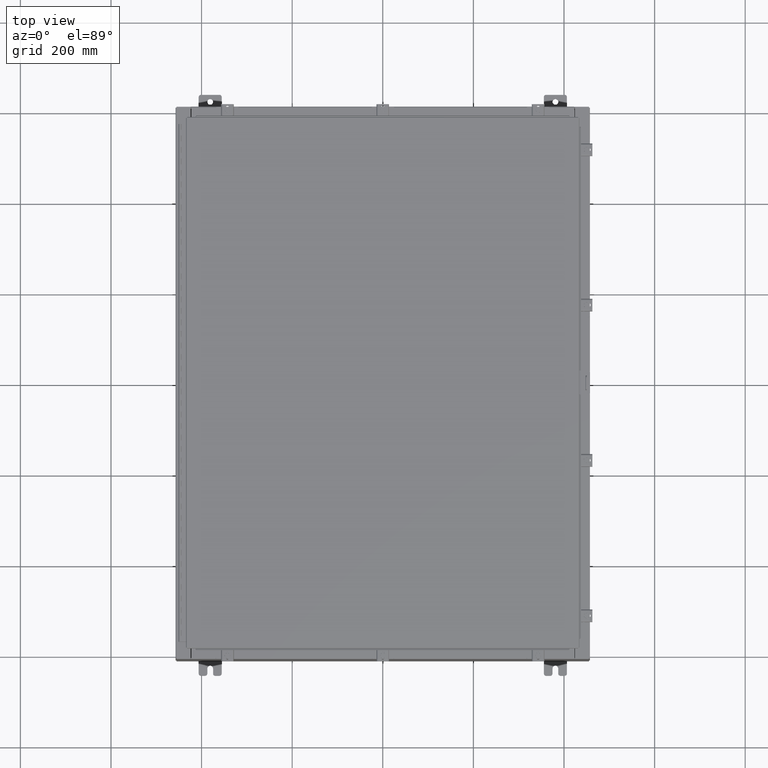
[diagram: clean part render]
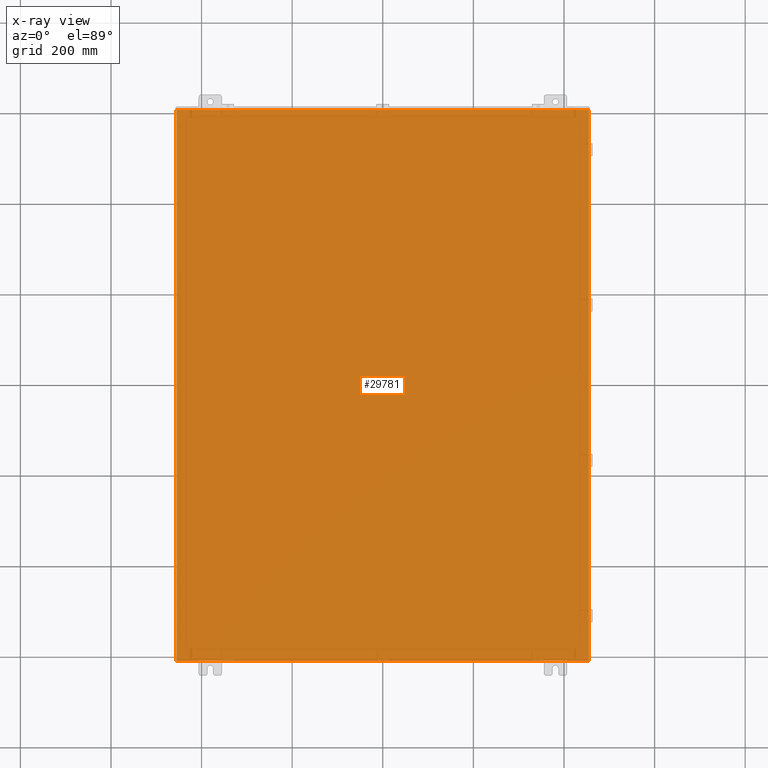
[diagram: x-ray — body ghosted, one internal face saturated and labeled with its STEP entity id]
A machine part, top view, then the same camera in x-ray: the body is ghosted and one INTERNAL B-rep face — a face not visible from any outside direction — is saturated and labeled: STEP entity #29781.
In plain terms, the highlighted planar face has unit normal (0, 0, -1).
Its self-contained STEP definition (entity closure, byte-faithful):
#513 = CARTESIAN_POINT ( 'NONE',  ( 17.91229999999999500, 23.92529999999998600, 3.103208580302999200E-015 ) ) ;
#1527 = DIRECTION ( 'NONE',  ( -1.000000000000000000, 0.0000000000000000000, -0.0000000000000000000 ) ) ;
#2047 = LINE ( 'NONE', #27643, #24085 ) ;
#2795 = DIRECTION ( 'NONE',  ( -0.0000000000000000000, -1.000000000000000000, -8.208677865577646300E-017 ) ) ;
#3584 = DIRECTION ( 'NONE',  ( -1.000000000000000000, -0.0000000000000000000, -0.0000000000000000000 ) ) ;
#5535 = DIRECTION ( 'NONE',  ( -0.0000000000000000000, 1.000000000000000000, -0.0000000000000000000 ) ) ;
#8779 = CARTESIAN_POINT ( 'NONE',  ( -18.00000000000000400, -23.92530000000000400, 0.0000000000000000000 ) ) ;
#9422 = VECTOR ( 'NONE', #50408, 39.37007874015748100 ) ;
#9579 = VECTOR ( 'NONE', #5535, 39.37007874015748100 ) ;
#11580 = CARTESIAN_POINT ( 'NONE',  ( -18.00000000000000400, 23.92530000000000000, 0.0000000000000000000 ) ) ;
#11602 = CARTESIAN_POINT ( 'NONE',  ( -17.91230000000000500, -23.92529999999998600, 4.481938114605432000E-017 ) ) ;
#14427 = EDGE_LOOP ( 'NONE', ( #41410, #49260, #44353, #34777 ) ) ;
#15926 = LINE ( 'NONE', #8779, #9422 ) ;
#16927 = VERTEX_POINT ( 'NONE', #48540 ) ;
#17479 = VECTOR ( 'NONE', #3584, 39.37007874015748100 ) ;
#23042 = VERTEX_POINT ( 'NONE', #11602 ) ;
#23055 = FACE_OUTER_BOUND ( 'NONE', #14427, .T. ) ;
#24085 = VECTOR ( 'NONE', #2795, 39.37007874015748100 ) ;
#24372 = AXIS2_PLACEMENT_3D ( 'NONE', #38865, #26374, #1527 ) ;
#26374 = DIRECTION ( 'NONE',  ( 0.0000000000000000000, 0.0000000000000000000, -1.000000000000000000 ) ) ;
#27643 = CARTESIAN_POINT ( 'NONE',  ( 17.91229999999999500, 23.92529999999998900, 3.103208580302999200E-015 ) ) ;
#28623 = LINE ( 'NONE', #11580, #17479 ) ;
#28945 = EDGE_CURVE ( 'NONE', #23042, #52955, #15926, .T. ) ;
#29781 = ADVANCED_FACE ( 'NONE', ( #23055 ), #34668, .F. ) ;
#30501 = CARTESIAN_POINT ( 'NONE',  ( -17.91230000000000500, -23.92529999999998900, 4.481938114605432000E-017 ) ) ;
#30543 = LINE ( 'NONE', #30501, #9579 ) ;
#31909 = EDGE_CURVE ( 'NONE', #41437, #52955, #2047, .T. ) ;
#34668 = PLANE ( 'NONE',  #24372 ) ;
#34777 = ORIENTED_EDGE ( 'NONE', *, *, #34865, .T. ) ;
#34865 = EDGE_CURVE ( 'NONE', #41437, #16927, #28623, .T. ) ;
#38865 = CARTESIAN_POINT ( 'NONE',  ( 0.0000000000000000000, 0.0000000000000000000, 0.0000000000000000000 ) ) ;
#39143 = CARTESIAN_POINT ( 'NONE',  ( 17.91229999999999500, -23.92529999999998900, -8.238229105893793900E-016 ) ) ;
#41410 = ORIENTED_EDGE ( 'NONE', *, *, #41525, .F. ) ;
#41437 = VERTEX_POINT ( 'NONE', #513 ) ;
#41525 = EDGE_CURVE ( 'NONE', #23042, #16927, #30543, .T. ) ;
#44353 = ORIENTED_EDGE ( 'NONE', *, *, #31909, .F. ) ;
#48540 = CARTESIAN_POINT ( 'NONE',  ( -17.91230000000000500, 23.92529999999998900, 4.481938114605432000E-017 ) ) ;
#49260 = ORIENTED_EDGE ( 'NONE', *, *, #28945, .T. ) ;
#50408 = DIRECTION ( 'NONE',  ( 1.000000000000000000, 1.214154663850783700E-016, 0.0000000000000000000 ) ) ;
#52955 = VERTEX_POINT ( 'NONE', #39143 ) ;